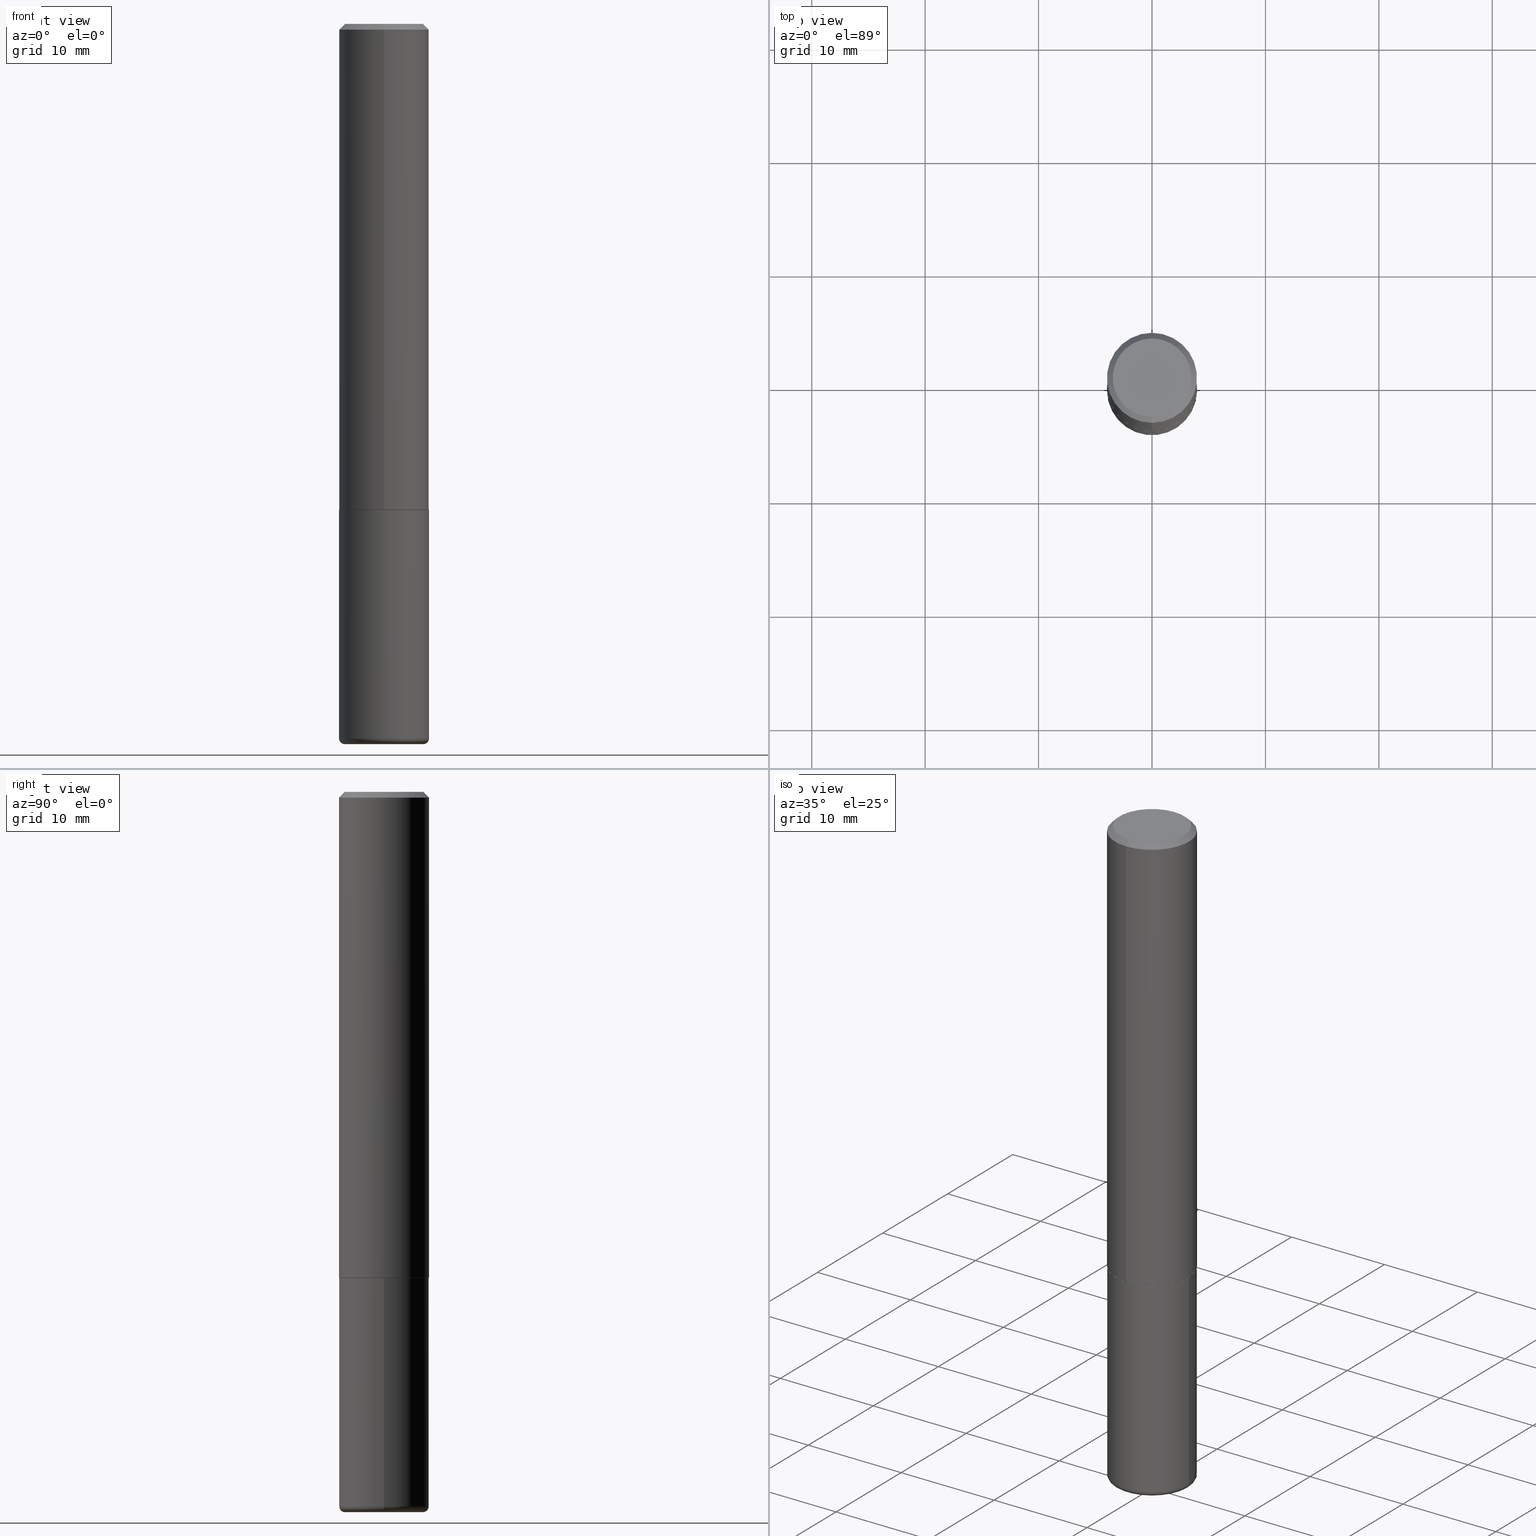
[diagram: canonical four-view strip — front | top / right | iso, engineering-drawing reading convention]
A machine part, canonical four-view strip (front | top / right | iso — engineering-drawing reading convention). The complete STEP part file that produces these views, byte-faithful:
ISO-10303-21;
HEADER;
FILE_DESCRIPTION (( 'STEP AP203' ),
    '1' );
FILE_NAME ('36571.STEP',
    '2024-03-01T16:43:00',
    ( '' ),
    ( '' ),
    'SwSTEP 2.0',
    'SolidWorks 2023',
    '' );
FILE_SCHEMA (( 'CONFIG_CONTROL_DESIGN' ));
ENDSEC;

DATA;
#1 = CARTESIAN_POINT ( 'NONE',  ( -1.091087918388479765E-15, -0.1562500000000001110, 5.457320719771705199E-16 ) ) ;
#2 = CIRCLE ( 'NONE', #92, 0.1362500000000002875 ) ;
#3 = CARTESIAN_POINT ( 'NONE',  ( 6.256945348280115770E-45, -8.939413192004363337E-31, -2.559467150593109485E-16 ) ) ;
#4 = LOCAL_TIME ( 11, 43, 0.000000000000000000, #14 ) ;
#5 = DATE_TIME_ROLE ( 'classification_date' ) ;
#6 = CARTESIAN_POINT ( 'NONE',  ( 0.1362500000000000100, -9.680132011942619886E-15, -2.500000000000000000 ) ) ;
#7 = CARTESIAN_POINT ( 'NONE',  ( 4.124087625075602358E-29, -5.892160034723112064E-15, -1.687000000000000277 ) ) ;
#8 = EDGE_CURVE ( 'NONE', #185, #179, #150, .T. ) ;
#9 = PERSON_AND_ORGANIZATION ( #160, #178 ) ;
#10 = ORIENTED_EDGE ( 'NONE', *, *, #283, .F. ) ;
#11 = CIRCLE ( 'NONE', #406, 0.1552499999999999991 ) ;
#12 = EDGE_CURVE ( 'NONE', #140, #179, #285, .T. ) ;
#13 = CC_DESIGN_APPROVAL ( #206, ( #302 ) ) ;
#14 = COORDINATED_UNIVERSAL_TIME_OFFSET ( 5, 0, .BEHIND. ) ;
#15 = DIRECTION ( 'NONE',  ( -2.445468806185136597E-29, 3.491481338843145583E-15, 1.000000000000000000 ) ) ;
#16 = ADVANCED_FACE ( 'NONE', ( #245 ), #310, .T. ) ;
#17 = VECTOR ( 'NONE', #159, 39.37007874015748143 ) ;
#18 = CARTESIAN_POINT ( 'NONE',  ( 4.121642996963523974E-29, -5.888667349462458327E-15, -1.686000000000000165 ) ) ;
#19 = CALENDAR_DATE ( 2024, 1, 3 ) ;
#20 = VERTEX_POINT ( 'NONE', #415 ) ;
#21 = AXIS2_PLACEMENT_3D ( 'NONE', #220, #353, #61 ) ;
#22 = LOCAL_TIME ( 11, 43, 0.000000000000000000, #338 ) ;
#23 = ORIENTED_EDGE ( 'NONE', *, *, #108, .F. ) ;
#24 = DIRECTION ( 'NONE',  ( 6.982962677686265922E-15, 1.000000000000000000, -3.492685260653889592E-15 ) ) ;
#25 = DIRECTION ( 'NONE',  ( -6.982962677686265922E-15, -1.000000000000000000, 3.519288880726909138E-15 ) ) ;
#26 = CYLINDRICAL_SURFACE ( 'NONE', #348, 0.1562500000000001110 ) ;
#27 = AXIS2_PLACEMENT_3D ( 'NONE', #152, #319, #124 ) ;
#28 = DIRECTION ( 'NONE',  ( -2.444628112078009112E-29, 3.492685260653889197E-15, 1.000000000000000000 ) ) ;
#29 = CARTESIAN_POINT ( 'NONE',  ( 6.064762639339139522E-29, -8.658873720331001644E-15, -2.480000000000000426 ) ) ;
#30 = EDGE_CURVE ( 'NONE', #179, #242, #67, .T. ) ;
#31 = FACE_OUTER_BOUND ( 'NONE', #408, .T. ) ;
#32 = PRODUCT_DEFINITION_SHAPE ( 'NONE', 'NONE',  #267 ) ;
#33 = DIRECTION ( 'NONE',  ( -2.445468806185136597E-29, 3.491481338843145583E-15, 1.000000000000000000 ) ) ;
#34 = APPROVAL_ROLE ( '' ) ;
#35 = CONICAL_SURFACE ( 'NONE', #392, 0.1562500000000000000, 0.7853981633974468357 ) ;
#36 = DIRECTION ( 'NONE',  ( 1.000000000000000000, -6.982962677686273021E-15, 0.000000000000000000 ) ) ;
#37 = DATE_TIME_ROLE ( 'creation_date' ) ;
#38 = PERSON_AND_ORGANIZATION ( #160, #178 ) ;
#39 = ORIENTED_EDGE ( 'NONE', *, *, #209, .T. ) ;
#40 = CARTESIAN_POINT ( 'NONE',  ( 6.113672015462842613E-29, -8.728703347107864943E-15, -2.500000000000000000 ) ) ;
#41 = PERSON_AND_ORGANIZATION ( #160, #178 ) ;
#42 = APPLICATION_CONTEXT ( 'configuration controlled 3d designs of mechanical parts and assemblies' ) ;
#43 = DIRECTION ( 'NONE',  ( 1.000000000000000000, -6.982962677686273021E-15, 0.000000000000000000 ) ) ;
#44 = EDGE_CURVE ( 'NONE', #213, #20, #68, .T. ) ;
#45 = ORIENTED_EDGE ( 'NONE', *, *, #283, .T. ) ;
#46 = AXIS2_PLACEMENT_3D ( 'NONE', #157, #95, #418 ) ;
#47 = CC_DESIGN_SECURITY_CLASSIFICATION ( #302, ( #380 ) ) ;
#48 = DATE_AND_TIME ( #396, #296 ) ;
#49 = FACE_OUTER_BOUND ( 'NONE', #50, .T. ) ;
#50 = EDGE_LOOP ( 'NONE', ( #210, #234, #116, #272 ) ) ;
#51 = DIRECTION ( 'NONE',  ( -2.444628112078009112E-29, 3.492685260653889197E-15, 1.000000000000000000 ) ) ;
#52 = ORIENTED_EDGE ( 'NONE', *, *, #82, .F. ) ;
#53 = ORIENTED_EDGE ( 'NONE', *, *, #108, .T. ) ;
#54 = AXIS2_PLACEMENT_3D ( 'NONE', #72, #300, #204 ) ;
#55 = CC_DESIGN_APPROVAL ( #332, ( #380 ) ) ;
#56 = CARTESIAN_POINT ( 'NONE',  ( 4.124087625075602358E-29, -5.892160034723112064E-15, -1.687000000000000277 ) ) ;
#57 = EDGE_LOOP ( 'NONE', ( #89, #146, #78, #378 ) ) ;
#58 = DIRECTION ( 'NONE',  ( -6.982962677686265922E-15, -1.000000000000000000, 3.492685260653889592E-15 ) ) ;
#59 = LINE ( 'NONE', #356, #266 ) ;
#60 = LENGTH_MEASURE_WITH_UNIT ( LENGTH_MEASURE( 0.02539999999999999897 ), #123 );
#61 = DIRECTION ( 'NONE',  ( -6.982962677686265922E-15, -1.000000000000000000, 3.496765431890251792E-15 ) ) ;
#62 = AXIS2_PLACEMENT_3D ( 'NONE', #127, #189, #94 ) ;
#63 = FACE_OUTER_BOUND ( 'NONE', #183, .T. ) ;
#64 = DIRECTION ( 'NONE',  ( -2.445468806185136877E-29, 3.491481338843145188E-15, 1.000000000000000000 ) ) ;
#65 = DIRECTION ( 'NONE',  ( 2.438088387897960049E-29, -3.491481338843145188E-15, -1.000000000000000000 ) ) ;
#66 = DIRECTION ( 'NONE',  ( 1.000000000000000000, -6.982962677686266711E-15, 4.876176775795936353E-29 ) ) ;
#67 = LINE ( 'NONE', #1, #17 ) ;
#68 = CIRCLE ( 'NONE', #27, 0.1562500000000000000 ) ;
#69 = AXIS2_PLACEMENT_3D ( 'NONE', #221, #252, #379 ) ;
#70 = PERSON_AND_ORGANIZATION ( #160, #178 ) ;
#71 = ORIENTED_EDGE ( 'NONE', *, *, #190, .F. ) ;
#72 = CARTESIAN_POINT ( 'NONE',  ( 4.125505876034326327E-29, -5.890129018628388122E-15, -1.687000000000000277 ) ) ;
#73 = PERSON_AND_ORGANIZATION ( #160, #178 ) ;
#74 = DIRECTION ( 'NONE',  ( 1.000000000000000000, -6.982962677686274599E-15, 0.000000000000000000 ) ) ;
#75 = PERSON_AND_ORGANIZATION ( #160, #178 ) ;
#76 = CARTESIAN_POINT ( 'NONE',  ( 1.021258291611617650E-15, 0.1362500000000002875, -7.318250818234043549E-16 ) ) ;
#77 = AXIS2_PLACEMENT_3D ( 'NONE', #153, #286, #413 ) ;
#78 = ORIENTED_EDGE ( 'NONE', *, *, #414, .F. ) ;
#79 = CC_DESIGN_DATE_AND_TIME_ASSIGNMENT ( #48, #5, ( #302 ) ) ;
#80 = ORIENTED_EDGE ( 'NONE', *, *, #121, .F. ) ;
#81 = CARTESIAN_POINT ( 'NONE',  ( -1.084104955710751547E-15, -0.1552500000000059110, -1.686999999999999833 ) ) ;
#82 = EDGE_CURVE ( 'NONE', #277, #242, #166, .T. ) ;
#83 = DESIGN_CONTEXT ( 'detailed design', #42, 'design' ) ;
#84 = ORIENTED_EDGE ( 'NONE', *, *, #231, .F. ) ;
#85 = AXIS2_PLACEMENT_3D ( 'NONE', #327, #33, #254 ) ;
#86 = ADVANCED_FACE ( 'NONE', ( #249 ), #26, .T. ) ;
#87 = ORIENTED_EDGE ( 'NONE', *, *, #154, .F. ) ;
#88 = EDGE_LOOP ( 'NONE', ( #269, #87, #53, #148 ) ) ;
#89 = ORIENTED_EDGE ( 'NONE', *, *, #184, .T. ) ;
#90 = ADVANCED_FACE ( 'NONE', ( #219 ), #294, .T. ) ;
#91 = EDGE_LOOP ( 'NONE', ( #409, #344, #244, #23 ) ) ;
#92 = AXIS2_PLACEMENT_3D ( 'NONE', #237, #397, #339 ) ;
#93 = CARTESIAN_POINT ( 'NONE',  ( -0.1362500000000000100, -7.690759242857866845E-15, -2.480000000000000426 ) ) ;
#94 = DIRECTION ( 'NONE',  ( -6.982962677686265133E-15, -1.000000000000000000, 3.496765431890256920E-15 ) ) ;
#95 = DIRECTION ( 'NONE',  ( -2.445468806185136597E-29, 3.491481338843145583E-15, 1.000000000000000000 ) ) ;
#96 = CARTESIAN_POINT ( 'NONE',  ( -1.091087918388439336E-15, -0.1562500000000060785, -1.685999999999999721 ) ) ;
#97 = DIRECTION ( 'NONE',  ( 1.000000000000000000, -6.982962677686267499E-15, 4.883557194083112901E-29 ) ) ;
#98 = TOROIDAL_SURFACE ( 'NONE', #281, 0.1362500000000000100, 0.01999999999999988939 ) ;
#99 = DIRECTION ( 'NONE',  ( -2.444628112078009112E-29, 3.492685260653889197E-15, 1.000000000000000000 ) ) ;
#100 = FACE_OUTER_BOUND ( 'NONE', #264, .T. ) ;
#101 = APPROVAL_DATE_TIME ( #227, #206 ) ;
#102 = FACE_OUTER_BOUND ( 'NONE', #91, .T. ) ;
#103 = AXIS2_PLACEMENT_3D ( 'NONE', #93, #385, #218 ) ;
#104 = CARTESIAN_POINT ( 'NONE',  ( 0.000000000000000000, 0.000000000000000000, 0.000000000000000000 ) ) ;
#105 = ORIENTED_EDGE ( 'NONE', *, *, #154, .T. ) ;
#106 = DIRECTION ( 'NONE',  ( -2.444628112078009112E-29, 3.492685260653889592E-15, 1.000000000000000000 ) ) ;
#107 = APPROVAL_DATE_TIME ( #263, #332 ) ;
#108 = EDGE_CURVE ( 'NONE', #246, #277, #59, .T. ) ;
#109 = ORIENTED_EDGE ( 'NONE', *, *, #174, .T. ) ;
#110 = CARTESIAN_POINT ( 'NONE',  ( 0.000000000000000000, 0.000000000000000000, 0.000000000000000000 ) ) ;
#111 = DIRECTION ( 'NONE',  ( -2.444628112078009112E-29, 3.492685260653889197E-15, 1.000000000000000000 ) ) ;
#112 = AXIS2_PLACEMENT_3D ( 'NONE', #195, #126, #97 ) ;
#113 = APPROVAL_PERSON_ORGANIZATION ( #75, #206, #388 ) ;
#114 = EDGE_CURVE ( 'NONE', #115, #172, #235, .T. ) ;
#115 = VERTEX_POINT ( 'NONE', #225 ) ;
#116 = ORIENTED_EDGE ( 'NONE', *, *, #114, .F. ) ;
#117 = EDGE_LOOP ( 'NONE', ( #71, #376 ) ) ;
#118 = AXIS2_PLACEMENT_3D ( 'NONE', #3, #133, #384 ) ;
#119 = AXIS2_PLACEMENT_3D ( 'NONE', #104, #176, #202 ) ;
#120 = ORIENTED_EDGE ( 'NONE', *, *, #393, .T. ) ;
#121 = EDGE_CURVE ( 'NONE', #172, #20, #390, .T. ) ;
#122 = DIRECTION ( 'NONE',  ( -1.000000000000000000, 6.982962677686265922E-15, -4.876176775795935793E-29 ) ) ;
#123 =( LENGTH_UNIT ( ) NAMED_UNIT ( * ) SI_UNIT ( $, .METRE. ) );
#124 = DIRECTION ( 'NONE',  ( 1.000000000000000000, -6.982962677686269077E-15, 0.000000000000000000 ) ) ;
#125 = VECTOR ( 'NONE', #358, 39.37007874015748143 ) ;
#126 = DIRECTION ( 'NONE',  ( -2.445468806185136597E-29, 3.491481338843145583E-15, 1.000000000000000000 ) ) ;
#127 = CARTESIAN_POINT ( 'NONE',  ( 4.889256224156025826E-31, -6.985370521307790228E-17, -0.02000000000000003511 ) ) ;
#128 = ADVANCED_FACE ( 'NONE', ( #155 ), #260, .F. ) ;
#129 =( NAMED_UNIT ( * ) PLANE_ANGLE_UNIT ( ) SI_UNIT ( $, .RADIAN. ) );
#130 = DIRECTION ( 'NONE',  ( -6.982962677686265922E-15, -1.000000000000000000, 3.492685260653888803E-15 ) ) ;
#131 = CYLINDRICAL_SURFACE ( 'NONE', #46, 0.1562500000000000000 ) ;
#132 = CARTESIAN_POINT ( 'NONE',  ( 6.064762639339139522E-29, -8.658873720331001644E-15, -2.480000000000000426 ) ) ;
#133 = DIRECTION ( 'NONE',  ( -2.444628112078009112E-29, 3.492685260653889197E-15, 1.000000000000000000 ) ) ;
#134 = DATE_AND_TIME ( #367, #22 ) ;
#135 = DIRECTION ( 'NONE',  ( -6.982962677686265922E-15, -1.000000000000000000, 3.492685260653888803E-15 ) ) ;
#136 = PERSON_AND_ORGANIZATION_ROLE ( 'design_supplier' ) ;
#137 = FACE_OUTER_BOUND ( 'NONE', #251, .T. ) ;
#138 = DIMENSIONAL_EXPONENTS ( 1.000000000000000000, 0.000000000000000000, 0.000000000000000000, 0.000000000000000000, 0.000000000000000000, 0.000000000000000000, 0.000000000000000000 ) ;
#139 = CALENDAR_DATE ( 2024, 1, 3 ) ;
#140 = VERTEX_POINT ( 'NONE', #359 ) ;
#141 = PERSON_AND_ORGANIZATION ( #160, #178 ) ;
#142 = MANIFOLD_SOLID_BREP ( 'Body-Move/Copy2[1]', #347 ) ;
#143 = ORIENTED_EDGE ( 'NONE', *, *, #184, .F. ) ;
#144 = DIRECTION ( 'NONE',  ( -6.982962677686265922E-15, -1.000000000000000000, 3.519288880726909138E-15 ) ) ;
#145 = TOROIDAL_SURFACE ( 'NONE', #112, 0.1362500000000000100, 0.01999999999999988939 ) ;
#146 = ORIENTED_EDGE ( 'NONE', *, *, #271, .T. ) ;
#147 = DIRECTION ( 'NONE',  ( -6.982962677686265922E-15, -1.000000000000000000, 3.496765431890251792E-15 ) ) ;
#148 = ORIENTED_EDGE ( 'NONE', *, *, #82, .T. ) ;
#149 = AXIS2_PLACEMENT_3D ( 'NONE', #132, #222, #256 ) ;
#150 = LINE ( 'NONE', #81, #248 ) ;
#151 = DIRECTION ( 'NONE',  ( -4.851104656540956386E-15, -0.7071067811865489050, -0.7071067811865461294 ) ) ;
#152 = CARTESIAN_POINT ( 'NONE',  ( 4.125505876034326327E-29, -5.890129018628388122E-15, -1.687000000000000277 ) ) ;
#153 = CARTESIAN_POINT ( 'NONE',  ( 4.889256224156025826E-31, -6.985370521307790228E-17, -0.02000000000000003511 ) ) ;
#154 = EDGE_CURVE ( 'NONE', #246, #395, #295, .T. ) ;
#155 = FACE_OUTER_BOUND ( 'NONE', #180, .T. ) ;
#156 = AXIS2_PLACEMENT_3D ( 'NONE', #165, #288, #24 ) ;
#157 = CARTESIAN_POINT ( 'NONE',  ( 0.000000000000000000, 0.000000000000000000, 0.000000000000000000 ) ) ;
#158 = ADVANCED_FACE ( 'NONE', ( #102 ), #35, .T. ) ;
#159 = DIRECTION ( 'NONE',  ( -2.444628112078009112E-29, 3.492685260653889592E-15, 1.000000000000000000 ) ) ;
#160 = PERSON ( 'UNSPECIFIED', 'UNSPECIFIED', 'UNSPECIFIED', ('UNSPECIFIED'), ('UNSPECIFIED'), ('UNSPECIFIED') ) ;
#161 = DIRECTION ( 'NONE',  ( -2.444628112078008551E-29, 3.492685260653889592E-15, 1.000000000000000000 ) ) ;
#162 = DIRECTION ( 'NONE',  ( -2.445468806185136597E-29, 3.491481338843145583E-15, 1.000000000000000000 ) ) ;
#163 = PRODUCT_RELATED_PRODUCT_CATEGORY ( 'detail', '', ( #416 ) ) ;
#164 = CARTESIAN_POINT ( 'NONE',  ( 4.124087625075602358E-29, -5.892160034723112064E-15, -1.687000000000000277 ) ) ;
#165 = CARTESIAN_POINT ( 'NONE',  ( 9.514286648347557326E-16, 0.1362500000000002875, -6.038517242937489300E-16 ) ) ;
#166 = CIRCLE ( 'NONE', #62, 0.1562500000000000000 ) ;
#167 = APPROVAL_STATUS ( 'not_yet_approved' ) ;
#168 = CARTESIAN_POINT ( 'NONE',  ( -1.071952812151801215E-15, -0.1562500000000000833, -0.01999999999999948694 ) ) ;
#169 =( NAMED_UNIT ( * ) SI_UNIT ( $, .STERADIAN. ) SOLID_ANGLE_UNIT ( ) );
#170 = CARTESIAN_POINT ( 'NONE',  ( 0.1562500000000000000, -6.981216937016868084E-15, -1.687000000000000277 ) ) ;
#171 = ORIENTED_EDGE ( 'NONE', *, *, #12, .F. ) ;
#172 = VERTEX_POINT ( 'NONE', #284 ) ;
#173 = CYLINDRICAL_SURFACE ( 'NONE', #216, 0.1562500000000001110 ) ;
#174 = EDGE_CURVE ( 'NONE', #115, #213, #412, .T. ) ;
#175 = VECTOR ( 'NONE', #64, 39.37007874015748143 ) ;
#176 = DIRECTION ( 'NONE',  ( 0.000000000000000000, 0.000000000000000000, 1.000000000000000000 ) ) ;
#177 = ORIENTED_EDGE ( 'NONE', *, *, #174, .F. ) ;
#178 = ORGANIZATION ( 'UNSPECIFIED', 'UNSPECIFIED', '' ) ;
#179 = VERTEX_POINT ( 'NONE', #96 ) ;
#180 = EDGE_LOOP ( 'NONE', ( #105, #365 ) ) ;
#181 = APPROVAL_STATUS ( 'not_yet_approved' ) ;
#182 = APPROVAL ( #333, 'UNSPECIFIED' ) ;
#183 = EDGE_LOOP ( 'NONE', ( #308, #45 ) ) ;
#184 = EDGE_CURVE ( 'NONE', #179, #140, #276, .T. ) ;
#185 = VERTEX_POINT ( 'NONE', #325 ) ;
#186 = AXIS2_PLACEMENT_3D ( 'NONE', #40, #270, #43 ) ;
#187 = DIRECTION ( 'NONE',  ( -1.000000000000000000, 6.982962677686265922E-15, -4.876176775795935793E-29 ) ) ;
#188 = LINE ( 'NONE', #355, #198 ) ;
#189 = DIRECTION ( 'NONE',  ( -2.444628112078009112E-29, 3.492685260653889197E-15, 1.000000000000000000 ) ) ;
#190 = EDGE_CURVE ( 'NONE', #185, #239, #11, .T. ) ;
#191 =( CONVERSION_BASED_UNIT ( 'INCH', #60 ) LENGTH_UNIT ( ) NAMED_UNIT ( #138 ) );
#192 = CARTESIAN_POINT ( 'NONE',  ( 0.1562500000000000000, -1.091087918388479174E-15, 7.619026212181150377E-30 ) ) ;
#193 = AXIS2_PLACEMENT_3D ( 'NONE', #56, #99, #25 ) ;
#194 = CARTESIAN_POINT ( 'NONE',  ( 4.125505876034326327E-29, -5.890129018628388122E-15, -1.687000000000000277 ) ) ;
#195 = CARTESIAN_POINT ( 'NONE',  ( 6.064762639339139522E-29, -8.658873720331001644E-15, -2.480000000000000426 ) ) ;
#196 = DIRECTION ( 'NONE',  ( 4.937700262164540154E-15, 0.7071067811865440200, -0.7071067811865510144 ) ) ;
#197 = CC_DESIGN_PERSON_AND_ORGANIZATION_ASSIGNMENT ( #9, #303, ( #380 ) ) ;
#198 = VECTOR ( 'NONE', #151, 39.37007874015748143 ) ;
#199 = LOCAL_TIME ( 11, 43, 0.000000000000000000, #298 ) ;
#200 = APPROVAL_DATE_TIME ( #233, #182 ) ;
#201 = ADVANCED_FACE ( 'NONE', ( #100 ), #98, .T. ) ;
#202 = DIRECTION ( 'NONE',  ( 1.000000000000000000, 0.000000000000000000, 0.000000000000000000 ) ) ;
#203 = ORIENTED_EDGE ( 'NONE', *, *, #271, .F. ) ;
#204 = DIRECTION ( 'NONE',  ( 1.000000000000000000, -6.982962677686269077E-15, 0.000000000000000000 ) ) ;
#205 = COORDINATED_UNIVERSAL_TIME_OFFSET ( 5, 0, .BEHIND. ) ;
#206 = APPROVAL ( #181, 'UNSPECIFIED' ) ;
#207 = CIRCLE ( 'NONE', #257, 0.1362500000000000100 ) ;
#208 = CALENDAR_DATE ( 2024, 1, 3 ) ;
#209 = EDGE_CURVE ( 'NONE', #172, #115, #301, .T. ) ;
#210 = ORIENTED_EDGE ( 'NONE', *, *, #231, .T. ) ;
#211 = AXIS2_PLACEMENT_3D ( 'NONE', #349, #161, #58 ) ;
#212 = ORIENTED_EDGE ( 'NONE', *, *, #8, .F. ) ;
#213 = VERTEX_POINT ( 'NONE', #170 ) ;
#214 = ORIENTED_EDGE ( 'NONE', *, *, #352, .F. ) ;
#215 = FACE_OUTER_BOUND ( 'NONE', #117, .T. ) ;
#216 = AXIS2_PLACEMENT_3D ( 'NONE', #110, #398, #135 ) ;
#217 = APPROVAL_PERSON_ORGANIZATION ( #70, #182, #34 ) ;
#218 = DIRECTION ( 'NONE',  ( -1.000000000000000000, 7.105427357601014480E-15, 0.000000000000000000 ) ) ;
#219 = FACE_OUTER_BOUND ( 'NONE', #374, .T. ) ;
#220 = CARTESIAN_POINT ( 'NONE',  ( 4.121642996963523974E-29, -5.888667349462458327E-15, -1.686000000000000165 ) ) ;
#221 = CARTESIAN_POINT ( 'NONE',  ( 4.889256224156025826E-31, -6.985370521307790228E-17, -0.02000000000000003511 ) ) ;
#222 = DIRECTION ( 'NONE',  ( -2.445468806185136597E-29, 3.491481338843145583E-15, 1.000000000000000000 ) ) ;
#223 = LOCAL_TIME ( 11, 43, 0.000000000000000000, #309 ) ;
#224 = CARTESIAN_POINT ( 'NONE',  ( -1.003347832174087067E-15, -0.1362500000000002875, 2.199316517047824334E-16 ) ) ;
#225 = CARTESIAN_POINT ( 'NONE',  ( 0.1562499999999999445, -9.749961638719480029E-15, -2.480000000000000426 ) ) ;
#226 = CARTESIAN_POINT ( 'NONE',  ( -0.1562500000000000000, 1.110223024625156540E-15, -7.685836078523291160E-30 ) ) ;
#227 = DATE_AND_TIME ( #19, #223 ) ;
#228 = ADVANCED_FACE ( 'NONE', ( #305 ), #173, .T. ) ;
#229 = CIRCLE ( 'NONE', #54, 0.1562500000000000000 ) ;
#230 = CONICAL_SURFACE ( 'NONE', #307, 0.1552499999999999991, 0.7853981633975165577 ) ;
#231 = EDGE_CURVE ( 'NONE', #313, #335, #207, .T. ) ;
#232 = SECURITY_CLASSIFICATION_LEVEL ( 'unclassified' ) ;
#233 = DATE_AND_TIME ( #208, #4 ) ;
#234 = ORIENTED_EDGE ( 'NONE', *, *, #362, .T. ) ;
#235 = CIRCLE ( 'NONE', #85, 0.1562500000000000000 ) ;
#236 =( GEOMETRIC_REPRESENTATION_CONTEXT ( 3 ) GLOBAL_UNCERTAINTY_ASSIGNED_CONTEXT ( ( #240 ) ) GLOBAL_UNIT_ASSIGNED_CONTEXT ( ( #191, #129, #169 ) ) REPRESENTATION_CONTEXT ( 'NONE', 'WORKASPACE' ) );
#237 = CARTESIAN_POINT ( 'NONE',  ( 6.256945348280115770E-45, -8.939413192004363337E-31, -2.559467150593109485E-16 ) ) ;
#238 = EDGE_CURVE ( 'NONE', #313, #115, #330, .T. ) ;
#239 = VERTEX_POINT ( 'NONE', #336 ) ;
#240 = UNCERTAINTY_MEASURE_WITH_UNIT (LENGTH_MEASURE( 1.000000000000000082E-05 ), #191, 'distance_accuracy_value', 'NONE');
#241 = ORIENTED_EDGE ( 'NONE', *, *, #121, .T. ) ;
#242 = VERTEX_POINT ( 'NONE', #168 ) ;
#243 = ADVANCED_FACE ( 'NONE', ( #137 ), #230, .T. ) ;
#244 = ORIENTED_EDGE ( 'NONE', *, *, #414, .T. ) ;
#245 = FACE_OUTER_BOUND ( 'NONE', #373, .T. ) ;
#246 = VERTEX_POINT ( 'NONE', #76 ) ;
#247 = PLANE ( 'NONE',  #407 ) ;
#248 = VECTOR ( 'NONE', #340, 39.37007874015748143 ) ;
#249 = FACE_OUTER_BOUND ( 'NONE', #57, .T. ) ;
#250 = VECTOR ( 'NONE', #383, 39.37007874015748143 ) ;
#251 = EDGE_LOOP ( 'NONE', ( #214, #120, #372, #171 ) ) ;
#252 = DIRECTION ( 'NONE',  ( 2.444628112078009112E-29, -3.492685260653889197E-15, -1.000000000000000000 ) ) ;
#253 = DIRECTION ( 'NONE',  ( 6.982962677686265133E-15, 1.000000000000000000, -3.496765431890256920E-15 ) ) ;
#254 = DIRECTION ( 'NONE',  ( 1.000000000000000000, -6.982962677686262766E-15, 0.000000000000000000 ) ) ;
#255 = CARTESIAN_POINT ( 'NONE',  ( 1.103117597267596553E-15, 0.1552499999999940872, -1.687000000000000943 ) ) ;
#256 = DIRECTION ( 'NONE',  ( 1.000000000000000000, -6.982962677686262766E-15, 0.000000000000000000 ) ) ;
#257 = AXIS2_PLACEMENT_3D ( 'NONE', #328, #15, #36 ) ;
#258 = CC_DESIGN_PERSON_AND_ORGANIZATION_ASSIGNMENT ( #73, #261, ( #302 ) ) ;
#259 = APPLICATION_PROTOCOL_DEFINITION ( 'international standard', 'config_control_design', 1994, #42 ) ;
#260 = PLANE ( 'NONE',  #156 ) ;
#261 = PERSON_AND_ORGANIZATION_ROLE ( 'classification_officer' ) ;
#262 = CARTESIAN_POINT ( 'NONE',  ( 0.1362500000000000100, -9.610302385165756588E-15, -2.480000000000000426 ) ) ;
#263 = DATE_AND_TIME ( #139, #199 ) ;
#264 = EDGE_LOOP ( 'NONE', ( #350, #304, #403, #346 ) ) ;
#265 = EDGE_CURVE ( 'NONE', #335, #313, #399, .T. ) ;
#266 = VECTOR ( 'NONE', #196, 39.37007874015748143 ) ;
#267 = PRODUCT_DEFINITION ( 'UNKNOWN', '', #380, #83 ) ;
#268 = PERSON_AND_ORGANIZATION_ROLE ( 'design_owner' ) ;
#269 = ORIENTED_EDGE ( 'NONE', *, *, #354, .F. ) ;
#270 = DIRECTION ( 'NONE',  ( -2.445468806185136597E-29, 3.491481338843145583E-15, 1.000000000000000000 ) ) ;
#271 = EDGE_CURVE ( 'NONE', #140, #277, #274, .T. ) ;
#272 = ORIENTED_EDGE ( 'NONE', *, *, #238, .F. ) ;
#273 = ORIENTED_EDGE ( 'NONE', *, *, #190, .T. ) ;
#274 = LINE ( 'NONE', #391, #369 ) ;
#275 = AXIS2_PLACEMENT_3D ( 'NONE', #18, #51, #147 ) ;
#276 = CIRCLE ( 'NONE', #21, 0.1562500000000002220 ) ;
#277 = VERTEX_POINT ( 'NONE', #366 ) ;
#278 = EDGE_LOOP ( 'NONE', ( #203, #299, #371, #52 ) ) ;
#279 = EDGE_CURVE ( 'NONE', #395, #246, #2, .T. ) ;
#280 = MANIFOLD_SOLID_BREP ( 'Body-Move/Copy2[2]', #375 ) ;
#281 = AXIS2_PLACEMENT_3D ( 'NONE', #29, #162, #292 ) ;
#282 = CARTESIAN_POINT ( 'NONE',  ( 6.113672015462842613E-29, -8.728703347107864943E-15, -2.500000000000000000 ) ) ;
#283 = EDGE_CURVE ( 'NONE', #20, #213, #229, .T. ) ;
#284 = CARTESIAN_POINT ( 'NONE',  ( -0.1562499999999999445, -7.548650695705845104E-15, -2.480000000000000426 ) ) ;
#285 = CIRCLE ( 'NONE', #275, 0.1562500000000002220 ) ;
#286 = DIRECTION ( 'NONE',  ( -2.444628112078009112E-29, 3.492685260653889197E-15, 1.000000000000000000 ) ) ;
#287 = CIRCLE ( 'NONE', #312, 0.1552499999999999991 ) ;
#288 = DIRECTION ( 'NONE',  ( 2.444628112078008551E-29, -3.492685260653889592E-15, -1.000000000000000000 ) ) ;
#289 = APPROVAL_PERSON_ORGANIZATION ( #297, #332, #368 ) ;
#290 = DIRECTION ( 'NONE',  ( -6.982962677686265922E-15, -1.000000000000000000, 3.519288880726909138E-15 ) ) ;
#291 = PLANE ( 'NONE',  #211 ) ;
#292 = DIRECTION ( 'NONE',  ( 1.000000000000000000, -6.982962677686267499E-15, 4.883557194083112901E-29 ) ) ;
#293 = CC_DESIGN_PERSON_AND_ORGANIZATION_ASSIGNMENT ( #38, #394, ( #267 ) ) ;
#294 = CYLINDRICAL_SURFACE ( 'NONE', #386, 0.1562500000000000000 ) ;
#295 = CIRCLE ( 'NONE', #118, 0.1362500000000002875 ) ;
#296 = LOCAL_TIME ( 11, 43, 0.000000000000000000, #205 ) ;
#297 = PERSON_AND_ORGANIZATION ( #160, #178 ) ;
#298 = COORDINATED_UNIVERSAL_TIME_OFFSET ( 5, 0, .BEHIND. ) ;
#299 = ORIENTED_EDGE ( 'NONE', *, *, #12, .T. ) ;
#300 = DIRECTION ( 'NONE',  ( -2.445468806185136597E-29, 3.491481338843145583E-15, 1.000000000000000000 ) ) ;
#301 = CIRCLE ( 'NONE', #149, 0.1562500000000000000 ) ;
#302 = SECURITY_CLASSIFICATION ( '', '', #232 ) ;
#303 = PERSON_AND_ORGANIZATION_ROLE ( 'creator' ) ;
#304 = ORIENTED_EDGE ( 'NONE', *, *, #265, .T. ) ;
#305 = FACE_OUTER_BOUND ( 'NONE', #278, .T. ) ;
#306 = DIRECTION ( 'NONE',  ( -6.982962677686266711E-15, -1.000000000000000000, 3.491481338843145583E-15 ) ) ;
#307 = AXIS2_PLACEMENT_3D ( 'NONE', #7, #111, #144 ) ;
#308 = ORIENTED_EDGE ( 'NONE', *, *, #44, .T. ) ;
#309 = COORDINATED_UNIVERSAL_TIME_OFFSET ( 5, 0, .BEHIND. ) ;
#310 = PLANE ( 'NONE',  #329 ) ;
#311 = AXIS2_PLACEMENT_3D ( 'NONE', #262, #306, #74 ) ;
#312 = AXIS2_PLACEMENT_3D ( 'NONE', #164, #315, #382 ) ;
#313 = VERTEX_POINT ( 'NONE', #6 ) ;
#314 = ADVANCED_FACE ( 'NONE', ( #49 ), #145, .T. ) ;
#315 = DIRECTION ( 'NONE',  ( -2.444628112078009112E-29, 3.492685260653889197E-15, 1.000000000000000000 ) ) ;
#316 = DIRECTION ( 'NONE',  ( -2.444628112078009112E-29, 3.492685260653889197E-15, 1.000000000000000000 ) ) ;
#317 = APPLICATION_CONTEXT ( 'configuration controlled 3d designs of mechanical parts and assemblies' ) ;
#318 = FACE_OUTER_BOUND ( 'NONE', #88, .T. ) ;
#319 = DIRECTION ( 'NONE',  ( -2.445468806185136597E-29, 3.491481338843145583E-15, 1.000000000000000000 ) ) ;
#320 = ADVANCED_FACE ( 'NONE', ( #318 ), #321, .T. ) ;
#321 = CONICAL_SURFACE ( 'NONE', #69, 0.1562500000000000000, 0.7853981633974468357 ) ;
#322 = CARTESIAN_POINT ( 'NONE',  ( 4.124087625075602358E-29, -5.892160034723112064E-15, -1.687000000000000277 ) ) ;
#323 = LINE ( 'NONE', #255, #125 ) ;
#324 = CC_DESIGN_PERSON_AND_ORGANIZATION_ASSIGNMENT ( #141, #136, ( #380 ) ) ;
#325 = CARTESIAN_POINT ( 'NONE',  ( -1.084104955710751547E-15, -0.1552500000000059110, -1.686999999999999833 ) ) ;
#326 = CARTESIAN_POINT ( 'NONE',  ( -0.1362500000000000100, -7.654619782670286835E-15, -2.500000000000000000 ) ) ;
#327 = CARTESIAN_POINT ( 'NONE',  ( 6.064762639339139522E-29, -8.658873720331001644E-15, -2.480000000000000426 ) ) ;
#328 = CARTESIAN_POINT ( 'NONE',  ( 6.113672015462842613E-29, -8.728703347107864943E-15, -2.500000000000000000 ) ) ;
#329 = AXIS2_PLACEMENT_3D ( 'NONE', #282, #410, #122 ) ;
#330 = CIRCLE ( 'NONE', #311, 0.01999999999999988939 ) ;
#331 = CC_DESIGN_APPROVAL ( #182, ( #267 ) ) ;
#332 = APPROVAL ( #167, 'UNSPECIFIED' ) ;
#333 = APPROVAL_STATUS ( 'not_yet_approved' ) ;
#334 = MECHANICAL_CONTEXT ( 'NONE', #317, 'mechanical' ) ;
#335 = VERTEX_POINT ( 'NONE', #326 ) ;
#336 = CARTESIAN_POINT ( 'NONE',  ( 1.106670310946397649E-15, 0.1552499999999940872, -1.687000000000000943 ) ) ;
#337 = ADVANCED_FACE ( 'NONE', ( #215 ), #291, .F. ) ;
#338 = COORDINATED_UNIVERSAL_TIME_OFFSET ( 5, 0, .BEHIND. ) ;
#339 = DIRECTION ( 'NONE',  ( -6.982962677686265922E-15, -1.000000000000000000, 3.492685260653889197E-15 ) ) ;
#340 = DIRECTION ( 'NONE',  ( -4.937700262164884886E-15, -0.7071067811865933139, 0.7071067811865017205 ) ) ;
#341 = CONICAL_SURFACE ( 'NONE', #193, 0.1552499999999999991, 0.7853981633975165577 ) ;
#342 = ORIENTED_EDGE ( 'NONE', *, *, #352, .T. ) ;
#343 = ORIENTED_EDGE ( 'NONE', *, *, #44, .F. ) ;
#344 = ORIENTED_EDGE ( 'NONE', *, *, #354, .T. ) ;
#345 = ADVANCED_FACE ( 'NONE', ( #411 ), #131, .T. ) ;
#346 = ORIENTED_EDGE ( 'NONE', *, *, #209, .F. ) ;
#347 = CLOSED_SHELL ( 'NONE', ( #90, #314, #405, #345, #201, #16 ) ) ;
#348 = AXIS2_PLACEMENT_3D ( 'NONE', #381, #316, #130 ) ;
#349 = CARTESIAN_POINT ( 'NONE',  ( 4.124087625075602358E-29, -5.892160034723112064E-15, -1.687000000000000277 ) ) ;
#350 = ORIENTED_EDGE ( 'NONE', *, *, #362, .F. ) ;
#351 = DIRECTION ( 'NONE',  ( -2.445468806185136597E-29, 3.491481338843145583E-15, 1.000000000000000000 ) ) ;
#352 = EDGE_CURVE ( 'NONE', #239, #140, #323, .T. ) ;
#353 = DIRECTION ( 'NONE',  ( -2.444628112078009112E-29, 3.492685260653889197E-15, 1.000000000000000000 ) ) ;
#354 = EDGE_CURVE ( 'NONE', #395, #242, #188, .T. ) ;
#355 = CARTESIAN_POINT ( 'NONE',  ( -1.071952812151801215E-15, -0.1562500000000000833, -0.01999999999999948694 ) ) ;
#356 = CARTESIAN_POINT ( 'NONE',  ( 1.091087918388479568E-15, 0.1562499999999999445, -0.02000000000000057981 ) ) ;
#357 = CIRCLE ( 'NONE', #77, 0.1562500000000000000 ) ;
#358 = DIRECTION ( 'NONE',  ( 5.024295867788404755E-15, 0.7071067811865981989, 0.7071067811864968355 ) ) ;
#359 = CARTESIAN_POINT ( 'NONE',  ( 1.110223024625178431E-15, 0.1562499999999943379, -1.686000000000000831 ) ) ;
#360 = SHAPE_DEFINITION_REPRESENTATION ( #32, #400 ) ;
#361 = CARTESIAN_POINT ( 'NONE',  ( 4.889256224156025826E-31, -6.985370521307790228E-17, -0.02000000000000003511 ) ) ;
#362 = EDGE_CURVE ( 'NONE', #335, #172, #363, .T. ) ;
#363 = CIRCLE ( 'NONE', #103, 0.01999999999999988939 ) ;
#364 = APPLICATION_PROTOCOL_DEFINITION ( 'international standard', 'config_control_design', 1994, #317 ) ;
#365 = ORIENTED_EDGE ( 'NONE', *, *, #279, .T. ) ;
#366 = CARTESIAN_POINT ( 'NONE',  ( 1.091087918388479568E-15, 0.1562499999999999445, -0.02000000000000057981 ) ) ;
#367 = CALENDAR_DATE ( 2024, 1, 3 ) ;
#368 = APPROVAL_ROLE ( '' ) ;
#369 = VECTOR ( 'NONE', #106, 39.37007874015748143 ) ;
#370 = ORIENTED_EDGE ( 'NONE', *, *, #265, .F. ) ;
#371 = ORIENTED_EDGE ( 'NONE', *, *, #30, .T. ) ;
#372 = ORIENTED_EDGE ( 'NONE', *, *, #8, .T. ) ;
#373 = EDGE_LOOP ( 'NONE', ( #84, #370 ) ) ;
#374 = EDGE_LOOP ( 'NONE', ( #404, #241, #343, #177 ) ) ;
#375 = CLOSED_SHELL ( 'NONE', ( #389, #86, #158, #320, #228, #243, #337, #128 ) ) ;
#376 = ORIENTED_EDGE ( 'NONE', *, *, #393, .F. ) ;
#377 = CC_DESIGN_PERSON_AND_ORGANIZATION_ASSIGNMENT ( #41, #268, ( #416 ) ) ;
#378 = ORIENTED_EDGE ( 'NONE', *, *, #30, .F. ) ;
#379 = DIRECTION ( 'NONE',  ( 6.982962677686265133E-15, 1.000000000000000000, -3.496765431890256920E-15 ) ) ;
#380 = PRODUCT_DEFINITION_FORMATION_WITH_SPECIFIED_SOURCE ( 'ANY', '', #416, .NOT_KNOWN. ) ;
#381 = CARTESIAN_POINT ( 'NONE',  ( 0.000000000000000000, 0.000000000000000000, 0.000000000000000000 ) ) ;
#382 = DIRECTION ( 'NONE',  ( -6.982962677686265922E-15, -1.000000000000000000, 3.519288880726909138E-15 ) ) ;
#383 = DIRECTION ( 'NONE',  ( -2.445468806185136877E-29, 3.491481338843145188E-15, 1.000000000000000000 ) ) ;
#384 = DIRECTION ( 'NONE',  ( -6.982962677686265922E-15, -1.000000000000000000, 3.492685260653889197E-15 ) ) ;
#385 = DIRECTION ( 'NONE',  ( 7.105427357601001859E-15, 1.000000000000000000, -3.491481338843145583E-15 ) ) ;
#386 = AXIS2_PLACEMENT_3D ( 'NONE', #417, #351, #66 ) ;
#387 = DIRECTION ( 'NONE',  ( 2.444628112078009112E-29, -3.492685260653889197E-15, -1.000000000000000000 ) ) ;
#388 = APPROVAL_ROLE ( '' ) ;
#389 = ADVANCED_FACE ( 'NONE', ( #31 ), #341, .T. ) ;
#390 = LINE ( 'NONE', #226, #175 ) ;
#391 = CARTESIAN_POINT ( 'NONE',  ( 1.110223024625157132E-15, 0.1562500000000001110, -5.457320719771705199E-16 ) ) ;
#392 = AXIS2_PLACEMENT_3D ( 'NONE', #361, #387, #253 ) ;
#393 = EDGE_CURVE ( 'NONE', #239, #185, #287, .T. ) ;
#394 = PERSON_AND_ORGANIZATION_ROLE ( 'creator' ) ;
#395 = VERTEX_POINT ( 'NONE', #224 ) ;
#396 = CALENDAR_DATE ( 2024, 1, 3 ) ;
#397 = DIRECTION ( 'NONE',  ( -2.444628112078009112E-29, 3.492685260653889197E-15, 1.000000000000000000 ) ) ;
#398 = DIRECTION ( 'NONE',  ( -2.444628112078009112E-29, 3.492685260653889197E-15, 1.000000000000000000 ) ) ;
#399 = CIRCLE ( 'NONE', #186, 0.1362500000000000100 ) ;
#400 = ADVANCED_BREP_SHAPE_REPRESENTATION ( '36571', ( #142, #280, #119 ), #236 ) ;
#401 = EDGE_LOOP ( 'NONE', ( #80, #39, #109, #10 ) ) ;
#402 = CC_DESIGN_DATE_AND_TIME_ASSIGNMENT ( #134, #37, ( #267 ) ) ;
#403 = ORIENTED_EDGE ( 'NONE', *, *, #238, .T. ) ;
#404 = ORIENTED_EDGE ( 'NONE', *, *, #114, .T. ) ;
#405 = ADVANCED_FACE ( 'NONE', ( #63 ), #247, .F. ) ;
#406 = AXIS2_PLACEMENT_3D ( 'NONE', #322, #28, #290 ) ;
#407 = AXIS2_PLACEMENT_3D ( 'NONE', #194, #65, #187 ) ;
#408 = EDGE_LOOP ( 'NONE', ( #273, #342, #143, #212 ) ) ;
#409 = ORIENTED_EDGE ( 'NONE', *, *, #279, .F. ) ;
#410 = DIRECTION ( 'NONE',  ( 2.438088387897960049E-29, -3.491481338843145188E-15, -1.000000000000000000 ) ) ;
#411 = FACE_OUTER_BOUND ( 'NONE', #401, .T. ) ;
#412 = LINE ( 'NONE', #192, #250 ) ;
#413 = DIRECTION ( 'NONE',  ( -6.982962677686265133E-15, -1.000000000000000000, 3.496765431890256920E-15 ) ) ;
#414 = EDGE_CURVE ( 'NONE', #242, #277, #357, .T. ) ;
#415 = CARTESIAN_POINT ( 'NONE',  ( -0.1562500000000000000, -6.164278344854539131E-15, -1.687000000000000277 ) ) ;
#416 = PRODUCT ( '36571', '36571', '', ( #334 ) ) ;
#417 = CARTESIAN_POINT ( 'NONE',  ( 0.000000000000000000, 0.000000000000000000, 0.000000000000000000 ) ) ;
#418 = DIRECTION ( 'NONE',  ( 1.000000000000000000, -6.982962677686266711E-15, 4.876176775795936353E-29 ) ) ;
ENDSEC;
END-ISO-10303-21;
